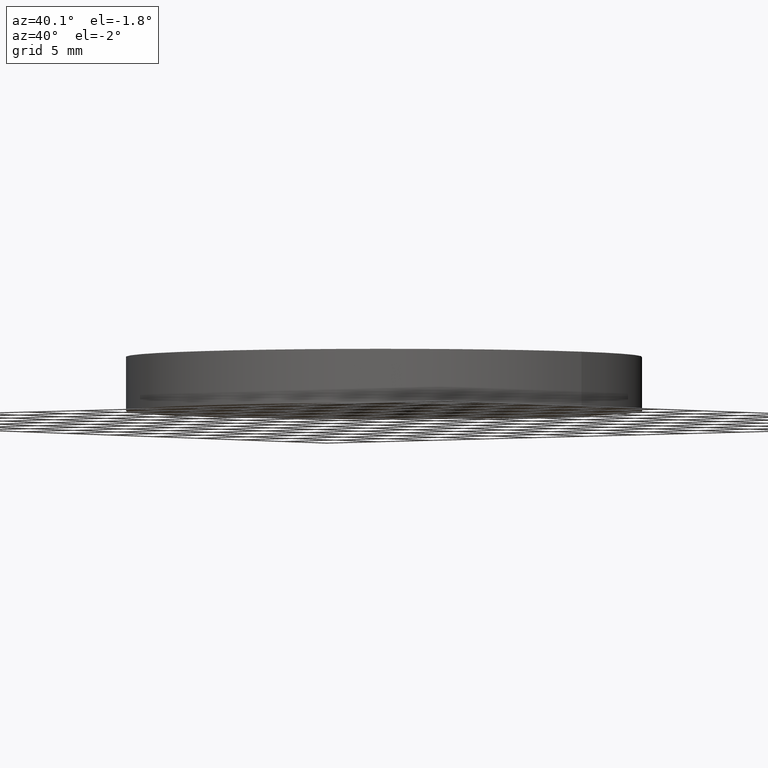
[diagram: clean part render]
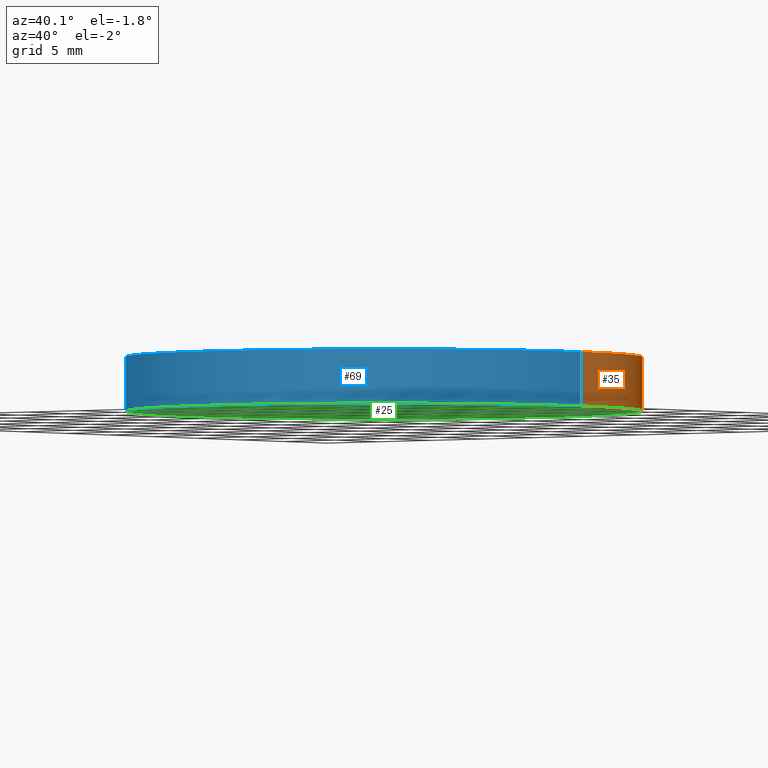
[diagram: same view with three faces highlighted in distinct colors, each labeled with its STEP entity id]
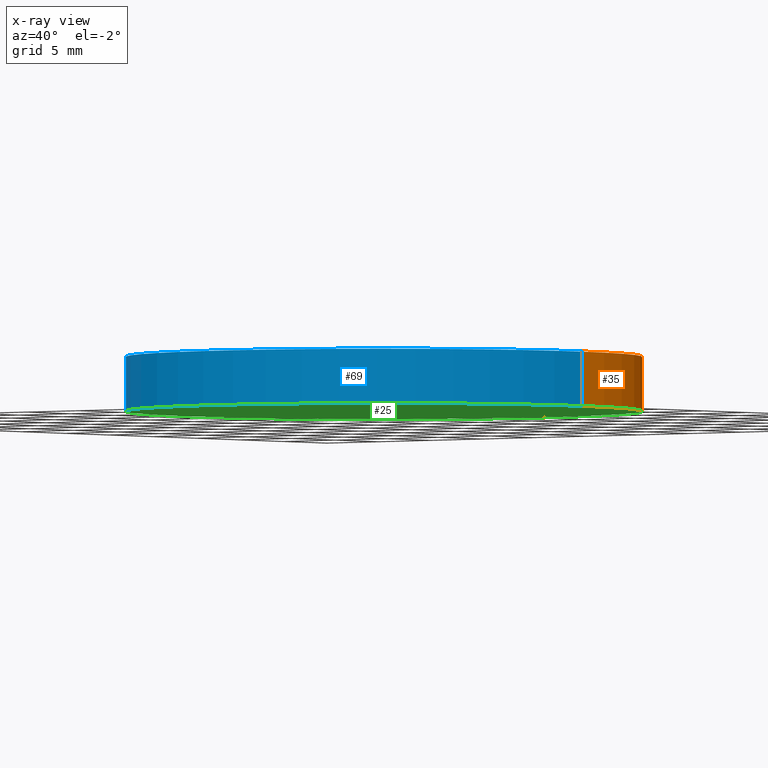
[diagram: x-ray of the same camera — body ghosted, the three highlighted faces saturated]
A machine part, auxiliary view with three faces highlighted in distinct colors.
The next image is the same camera in x-ray (body ghosted, the three faces saturated) — at least one of them is partly hidden behind the body in this view.
Their STEP definitions:

[orange] entity #35 — the highlighted cylindrical surface (partial cylindrical patch) has radius 19.05 mm, axis along (-0, -0, -1).
#7 = CARTESIAN_POINT ( 'NONE',  ( 0.0000000000000000000, 0.0000000000000000000, 4.000000000000000000 ) ) ;
#8 = CARTESIAN_POINT ( 'NONE',  ( -19.05000000000000100, 0.0000000000000000000, 0.0000000000000000000 ) ) ;
#9 = VERTEX_POINT ( 'NONE', #127 ) ;
#21 = DIRECTION ( 'NONE',  ( -1.000000000000000000, 0.0000000000000000000, 0.0000000000000000000 ) ) ;
#22 = AXIS2_PLACEMENT_3D ( 'NONE', #125, #109, #102 ) ;
#24 = CYLINDRICAL_SURFACE ( 'NONE', #41, 19.05000000000000100 ) ;
#29 = DIRECTION ( 'NONE',  ( -0.0000000000000000000, -0.0000000000000000000, -1.000000000000000000 ) ) ;
#32 = CARTESIAN_POINT ( 'NONE',  ( 19.05000000000000100, 2.332952152375708000E-015, 4.000000000000000000 ) ) ;
#34 = EDGE_CURVE ( 'NONE', #85, #44, #138, .T. ) ;
#35 = ADVANCED_FACE ( 'NONE', ( #53 ), #24, .T. ) ;
#38 = DIRECTION ( 'NONE',  ( -0.0000000000000000000, -0.0000000000000000000, -1.000000000000000000 ) ) ;
#39 = ORIENTED_EDGE ( 'NONE', *, *, #119, .F. ) ;
#41 = AXIS2_PLACEMENT_3D ( 'NONE', #7, #29, #21 ) ;
#44 = VERTEX_POINT ( 'NONE', #8 ) ;
#52 = DIRECTION ( 'NONE',  ( -0.0000000000000000000, -0.0000000000000000000, -1.000000000000000000 ) ) ;
#53 = FACE_OUTER_BOUND ( 'NONE', #91, .T. ) ;
#56 = ORIENTED_EDGE ( 'NONE', *, *, #70, .T. ) ;
#58 = ORIENTED_EDGE ( 'NONE', *, *, #93, .F. ) ;
#64 = VERTEX_POINT ( 'NONE', #32 ) ;
#70 = EDGE_CURVE ( 'NONE', #64, #85, #105, .T. ) ;
#82 = CIRCLE ( 'NONE', #22, 19.05000000000000100 ) ;
#85 = VERTEX_POINT ( 'NONE', #122 ) ;
#91 = EDGE_LOOP ( 'NONE', ( #39, #56, #115, #58 ) ) ;
#93 = EDGE_CURVE ( 'NONE', #9, #44, #128, .T. ) ;
#95 = VECTOR ( 'NONE', #52, 1000.000000000000000 ) ;
#100 = VECTOR ( 'NONE', #38, 1000.000000000000000 ) ;
#102 = DIRECTION ( 'NONE',  ( 1.000000000000000000, 0.0000000000000000000, 0.0000000000000000000 ) ) ;
#105 = LINE ( 'NONE', #135, #100 ) ;
#109 = DIRECTION ( 'NONE',  ( 0.0000000000000000000, 0.0000000000000000000, 1.000000000000000000 ) ) ;
#110 = AXIS2_PLACEMENT_3D ( 'NONE', #134, #139, #131 ) ;
#115 = ORIENTED_EDGE ( 'NONE', *, *, #34, .T. ) ;
#119 = EDGE_CURVE ( 'NONE', #64, #9, #82, .T. ) ;
#122 = CARTESIAN_POINT ( 'NONE',  ( 19.05000000000000100, 2.332952152375708000E-015, 0.0000000000000000000 ) ) ;
#125 = CARTESIAN_POINT ( 'NONE',  ( 0.0000000000000000000, 0.0000000000000000000, 4.000000000000000000 ) ) ;
#127 = CARTESIAN_POINT ( 'NONE',  ( -19.05000000000000100, 0.0000000000000000000, 4.000000000000000000 ) ) ;
#128 = LINE ( 'NONE', #132, #95 ) ;
#131 = DIRECTION ( 'NONE',  ( 1.000000000000000000, 0.0000000000000000000, 0.0000000000000000000 ) ) ;
#132 = CARTESIAN_POINT ( 'NONE',  ( -19.05000000000000100, 0.0000000000000000000, 4.000000000000000000 ) ) ;
#134 = CARTESIAN_POINT ( 'NONE',  ( 0.0000000000000000000, 0.0000000000000000000, 0.0000000000000000000 ) ) ;
#135 = CARTESIAN_POINT ( 'NONE',  ( 19.05000000000000100, 2.332952152375708000E-015, 4.000000000000000000 ) ) ;
#138 = CIRCLE ( 'NONE', #110, 19.05000000000000100 ) ;
#139 = DIRECTION ( 'NONE',  ( 0.0000000000000000000, 0.0000000000000000000, 1.000000000000000000 ) ) ;

[blue] entity #69 — the highlighted cylindrical surface (partial cylindrical patch) has radius 19.05 mm, axis along (-0, -0, -1).
#3 = AXIS2_PLACEMENT_3D ( 'NONE', #133, #75, #103 ) ;
#8 = CARTESIAN_POINT ( 'NONE',  ( -19.05000000000000100, 0.0000000000000000000, 0.0000000000000000000 ) ) ;
#9 = VERTEX_POINT ( 'NONE', #127 ) ;
#14 = DIRECTION ( 'NONE',  ( 1.000000000000000000, 0.0000000000000000000, 0.0000000000000000000 ) ) ;
#26 = CIRCLE ( 'NONE', #118, 19.05000000000000100 ) ;
#32 = CARTESIAN_POINT ( 'NONE',  ( 19.05000000000000100, 2.332952152375708000E-015, 4.000000000000000000 ) ) ;
#37 = DIRECTION ( 'NONE',  ( 0.0000000000000000000, 0.0000000000000000000, 1.000000000000000000 ) ) ;
#38 = DIRECTION ( 'NONE',  ( -0.0000000000000000000, -0.0000000000000000000, -1.000000000000000000 ) ) ;
#42 = EDGE_CURVE ( 'NONE', #44, #85, #72, .T. ) ;
#44 = VERTEX_POINT ( 'NONE', #8 ) ;
#45 = CYLINDRICAL_SURFACE ( 'NONE', #3, 19.05000000000000100 ) ;
#47 = AXIS2_PLACEMENT_3D ( 'NONE', #88, #87, #14 ) ;
#48 = EDGE_CURVE ( 'NONE', #9, #64, #26, .T. ) ;
#51 = FACE_OUTER_BOUND ( 'NONE', #80, .T. ) ;
#52 = DIRECTION ( 'NONE',  ( -0.0000000000000000000, -0.0000000000000000000, -1.000000000000000000 ) ) ;
#57 = DIRECTION ( 'NONE',  ( 1.000000000000000000, 0.0000000000000000000, 0.0000000000000000000 ) ) ;
#61 = ORIENTED_EDGE ( 'NONE', *, *, #70, .F. ) ;
#64 = VERTEX_POINT ( 'NONE', #32 ) ;
#69 = ADVANCED_FACE ( 'NONE', ( #51 ), #45, .T. ) ;
#70 = EDGE_CURVE ( 'NONE', #64, #85, #105, .T. ) ;
#72 = CIRCLE ( 'NONE', #47, 19.05000000000000100 ) ;
#75 = DIRECTION ( 'NONE',  ( -0.0000000000000000000, -0.0000000000000000000, -1.000000000000000000 ) ) ;
#77 = ORIENTED_EDGE ( 'NONE', *, *, #42, .T. ) ;
#80 = EDGE_LOOP ( 'NONE', ( #61, #120, #107, #77 ) ) ;
#85 = VERTEX_POINT ( 'NONE', #122 ) ;
#87 = DIRECTION ( 'NONE',  ( 0.0000000000000000000, 0.0000000000000000000, 1.000000000000000000 ) ) ;
#88 = CARTESIAN_POINT ( 'NONE',  ( 0.0000000000000000000, 0.0000000000000000000, 0.0000000000000000000 ) ) ;
#93 = EDGE_CURVE ( 'NONE', #9, #44, #128, .T. ) ;
#95 = VECTOR ( 'NONE', #52, 1000.000000000000000 ) ;
#100 = VECTOR ( 'NONE', #38, 1000.000000000000000 ) ;
#103 = DIRECTION ( 'NONE',  ( -1.000000000000000000, 0.0000000000000000000, 0.0000000000000000000 ) ) ;
#105 = LINE ( 'NONE', #135, #100 ) ;
#107 = ORIENTED_EDGE ( 'NONE', *, *, #93, .T. ) ;
#118 = AXIS2_PLACEMENT_3D ( 'NONE', #121, #37, #57 ) ;
#120 = ORIENTED_EDGE ( 'NONE', *, *, #48, .F. ) ;
#121 = CARTESIAN_POINT ( 'NONE',  ( 0.0000000000000000000, 0.0000000000000000000, 4.000000000000000000 ) ) ;
#122 = CARTESIAN_POINT ( 'NONE',  ( 19.05000000000000100, 2.332952152375708000E-015, 0.0000000000000000000 ) ) ;
#127 = CARTESIAN_POINT ( 'NONE',  ( -19.05000000000000100, 0.0000000000000000000, 4.000000000000000000 ) ) ;
#128 = LINE ( 'NONE', #132, #95 ) ;
#132 = CARTESIAN_POINT ( 'NONE',  ( -19.05000000000000100, 0.0000000000000000000, 4.000000000000000000 ) ) ;
#133 = CARTESIAN_POINT ( 'NONE',  ( 0.0000000000000000000, 0.0000000000000000000, 4.000000000000000000 ) ) ;
#135 = CARTESIAN_POINT ( 'NONE',  ( 19.05000000000000100, 2.332952152375708000E-015, 4.000000000000000000 ) ) ;

[green] entity #25 — the highlighted planar face has unit normal (0, 0, 1).
#2 = EDGE_LOOP ( 'NONE', ( #36, #16 ) ) ;
#6 = FACE_OUTER_BOUND ( 'NONE', #2, .T. ) ;
#8 = CARTESIAN_POINT ( 'NONE',  ( -19.05000000000000100, 0.0000000000000000000, 0.0000000000000000000 ) ) ;
#14 = DIRECTION ( 'NONE',  ( 1.000000000000000000, 0.0000000000000000000, 0.0000000000000000000 ) ) ;
#15 = DIRECTION ( 'NONE',  ( 1.000000000000000000, 0.0000000000000000000, -0.0000000000000000000 ) ) ;
#16 = ORIENTED_EDGE ( 'NONE', *, *, #34, .F. ) ;
#25 = ADVANCED_FACE ( 'NONE', ( #6 ), #83, .F. ) ;
#34 = EDGE_CURVE ( 'NONE', #85, #44, #138, .T. ) ;
#36 = ORIENTED_EDGE ( 'NONE', *, *, #42, .F. ) ;
#40 = DIRECTION ( 'NONE',  ( 0.0000000000000000000, 0.0000000000000000000, 1.000000000000000000 ) ) ;
#42 = EDGE_CURVE ( 'NONE', #44, #85, #72, .T. ) ;
#44 = VERTEX_POINT ( 'NONE', #8 ) ;
#47 = AXIS2_PLACEMENT_3D ( 'NONE', #88, #87, #14 ) ;
#50 = CARTESIAN_POINT ( 'NONE',  ( 0.0000000000000000000, 0.0000000000000000000, 0.0000000000000000000 ) ) ;
#72 = CIRCLE ( 'NONE', #47, 19.05000000000000100 ) ;
#83 = PLANE ( 'NONE',  #92 ) ;
#85 = VERTEX_POINT ( 'NONE', #122 ) ;
#87 = DIRECTION ( 'NONE',  ( 0.0000000000000000000, 0.0000000000000000000, 1.000000000000000000 ) ) ;
#88 = CARTESIAN_POINT ( 'NONE',  ( 0.0000000000000000000, 0.0000000000000000000, 0.0000000000000000000 ) ) ;
#92 = AXIS2_PLACEMENT_3D ( 'NONE', #50, #40, #15 ) ;
#110 = AXIS2_PLACEMENT_3D ( 'NONE', #134, #139, #131 ) ;
#122 = CARTESIAN_POINT ( 'NONE',  ( 19.05000000000000100, 2.332952152375708000E-015, 0.0000000000000000000 ) ) ;
#131 = DIRECTION ( 'NONE',  ( 1.000000000000000000, 0.0000000000000000000, 0.0000000000000000000 ) ) ;
#134 = CARTESIAN_POINT ( 'NONE',  ( 0.0000000000000000000, 0.0000000000000000000, 0.0000000000000000000 ) ) ;
#138 = CIRCLE ( 'NONE', #110, 19.05000000000000100 ) ;
#139 = DIRECTION ( 'NONE',  ( 0.0000000000000000000, 0.0000000000000000000, 1.000000000000000000 ) ) ;